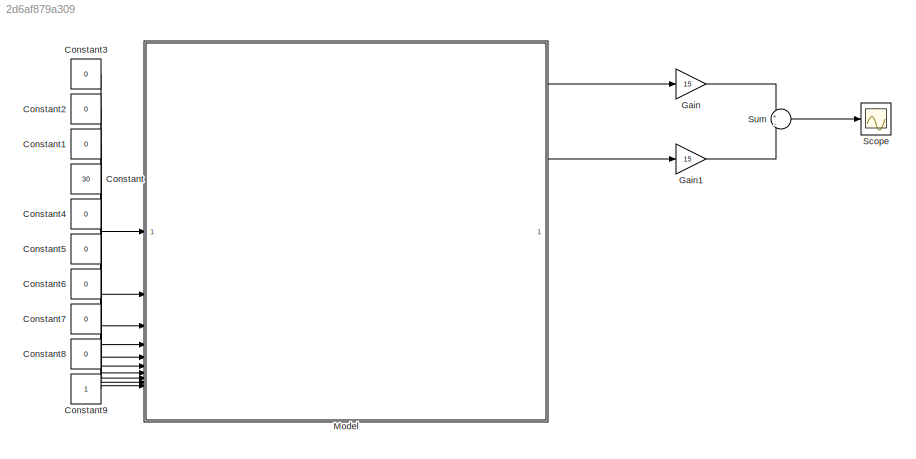
MODEL slx_2d6af879a309
KIND model
CONFIG AbsTol = auto
CONFIG EnableMultiTasking = off
CONFIG FixedStep = auto
CONFIG MaxStep = auto
CONFIG MinStep = auto
CONFIG RelTol = 1e-3
CONFIG SampleTimeConstraint = Unconstrained
CONFIG SolverName = VariableStepAuto
CONFIG StartTime = 0.0
CONFIG StopTime = 10
BLOCK [Constant] Constant
  Value = 30
BLOCK [Constant] Constant1
  Value = 0
BLOCK [Constant] Constant2
  Value = 0
BLOCK [Constant] Constant3
  Value = 0
BLOCK [Constant] Constant4
  Value = 0
BLOCK [Constant] Constant5
  Value = 0
BLOCK [Constant] Constant6
  Value = 0
BLOCK [Constant] Constant7
  Value = 0
BLOCK [Constant] Constant8
  Value = 0
BLOCK [Constant] Constant9
BLOCK [Gain] Gain
  Gain = 15
BLOCK [Gain] Gain1
  Gain = 15
BLOCK [ModelReference] Model
  ModelNameDialog = Stand_DCM.slx
  ModelReferenceVersion = 11.49
BLOCK [Scope] Scope
  Floating = off
  NumInputPorts = 1
  ScopeSpecificationString = Simulink.scopes.TimeScopeBlockCfg('CurrentConfiguration', extmgr.ConfigurationSet(extmgr.Configuration('Core','General UI',true),extmgr.Configuration('Core','Source UI',true),extmgr.Configuration('Sources','WiredSimulink',true),extmgr.Configuration('Visuals','Time Domain',true,'SerializedDisplays',{struct('MinYLimReal','-30.00000','MaxYLimReal','70.00000','YLabelReal','','MinYLimMag','0.00000','Ma...<+1472ch>
BLOCK [Sum] Sum
  Inputs = +|-
LINE Constant1:1 -> Model:3
LINE Constant2:1 -> Model:2
LINE Constant3:1 -> Model:1
LINE Constant4:1 -> Model:5
LINE Constant5:1 -> Model:6
LINE Constant6:1 -> Model:7
LINE Constant7:1 -> Model:8
LINE Constant8:1 -> Model:9
LINE Constant9:1 -> Model:10
LINE Constant:1 -> Model:4
LINE Gain1:1 -> Sum:2
LINE Gain:1 -> Sum:1
LINE Model:1 -> Gain:1
LINE Model:2 -> Gain1:1
LINE Sum:1 -> Scope:1
